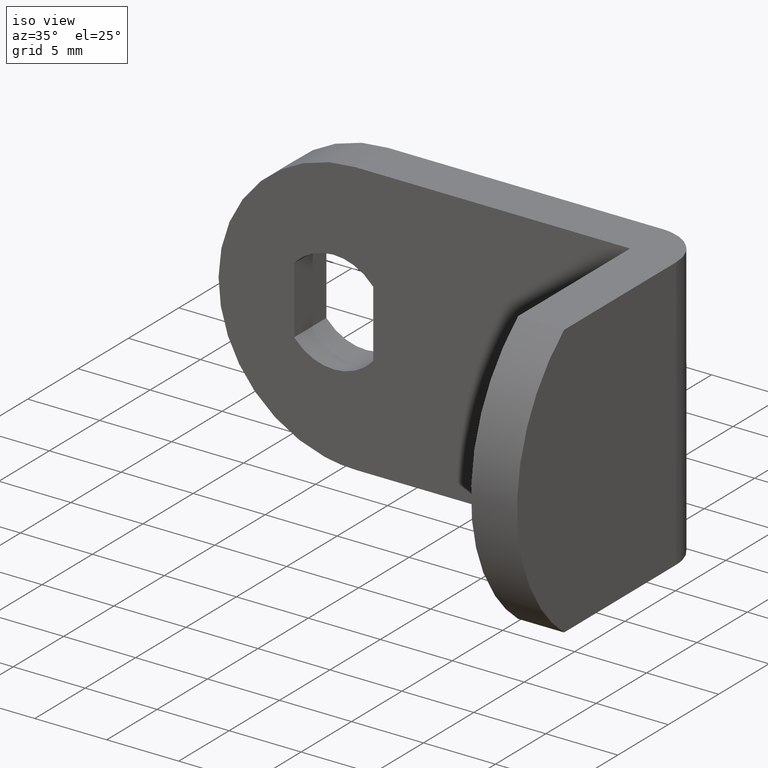
[diagram: clean part render]
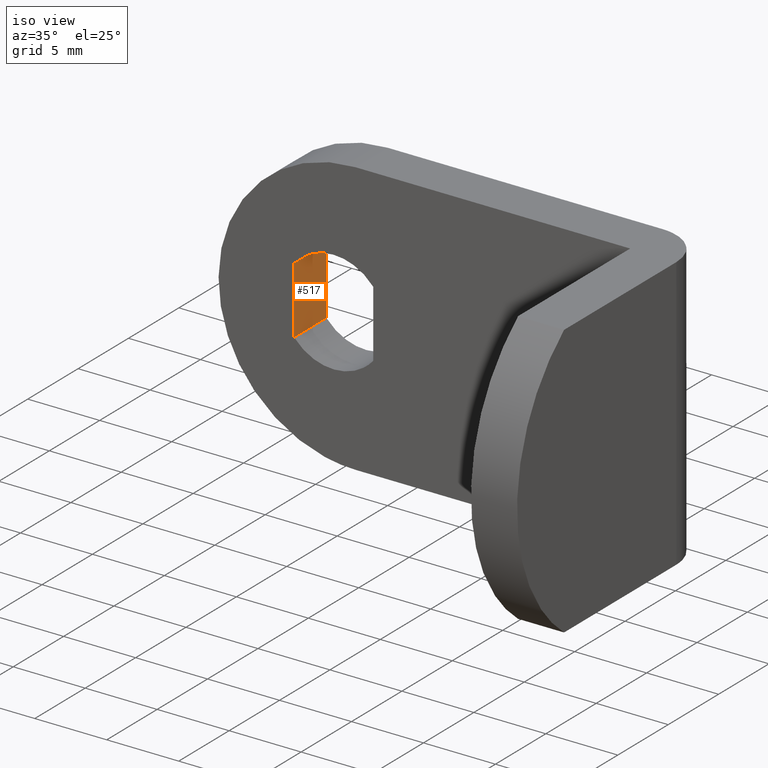
[diagram: same view with one face highlighted and labeled with its STEP entity id]
A machine part, iso view. The second image highlights one B-rep face of the part: STEP entity #517.
In plain terms, the highlighted face is a freeform B-spline surface patch.
Its self-contained STEP definition (entity closure, byte-faithful):
#255=CARTESIAN_POINT('',(-2.750000000000000,0.0,-2.323252031097790));
#256=VERTEX_POINT('',#255);
#281=CARTESIAN_POINT('',(-2.750000000000000,0.0,2.323252031097790));
#282=VERTEX_POINT('',#281);
#298=CARTESIAN_POINT('',(-2.750000000000000,0.0,-2.323252031097790));
#299=CARTESIAN_POINT('',(-2.750000000000000,0.0,2.323252031097790));
#300=QUASI_UNIFORM_CURVE('',1,(#298,#299),.UNSPECIFIED.,.F.,.U.);
#301=EDGE_CURVE('',#256,#282,#300,.T.);
#343=CARTESIAN_POINT('',(-2.750000000000000,-3.199999999999760,-2.323252031097790));
#344=VERTEX_POINT('',#343);
#362=CARTESIAN_POINT('',(-2.750000000000000,-3.199999999999760,2.323252031097790));
#363=VERTEX_POINT('',#362);
#364=CARTESIAN_POINT('',(-2.750000000000000,-3.199999999999760,-2.323252031097790));
#365=CARTESIAN_POINT('',(-2.750000000000000,-3.199999999999760,2.323252031097790));
#366=QUASI_UNIFORM_CURVE('',1,(#364,#365),.UNSPECIFIED.,.F.,.U.);
#367=EDGE_CURVE('',#344,#363,#366,.T.);
#494=CARTESIAN_POINT('',(-2.750000000000000,-3.199999999999760,2.323252031097790));
#495=CARTESIAN_POINT('',(-2.750000000000000,0.0,2.323252031097790));
#496=QUASI_UNIFORM_CURVE('',1,(#494,#495),.UNSPECIFIED.,.F.,.U.);
#497=EDGE_CURVE('',#363,#282,#496,.T.);
#502=CARTESIAN_POINT('',(-2.750000000000000,-3.359840053876149,-2.555344839780001));
#503=CARTESIAN_POINT('',(-2.750000000000000,-3.359840053876149,2.555344673608066));
#504=CARTESIAN_POINT('',(-2.750000000000000,0.159840082486617,-2.555344839780001));
#505=CARTESIAN_POINT('',(-2.750000000000000,0.159840082486617,2.555344673608066));
#506=B_SPLINE_SURFACE_WITH_KNOTS('',1,1,((#502,#504),(#503,#505)),.UNSPECIFIED.,.F.,.F.,.U.,(2,2),(2,2),(0.0,5.110689513388067),(0.0,3.519680136362766),.UNSPECIFIED.);
#507=ORIENTED_EDGE('',*,*,#301,.T.);
#508=ORIENTED_EDGE('',*,*,#497,.F.);
#509=ORIENTED_EDGE('',*,*,#367,.F.);
#510=CARTESIAN_POINT('',(-2.750000000000000,-3.199999999999760,-2.323252031097790));
#511=CARTESIAN_POINT('',(-2.750000000000000,0.0,-2.323252031097790));
#512=QUASI_UNIFORM_CURVE('',1,(#510,#511),.UNSPECIFIED.,.F.,.U.);
#513=EDGE_CURVE('',#344,#256,#512,.T.);
#514=ORIENTED_EDGE('',*,*,#513,.T.);
#515=EDGE_LOOP('',(#507,#508,#509,#514));
#516=FACE_OUTER_BOUND('',#515,.T.);
#517=ADVANCED_FACE('',(#516),#506,.F.);